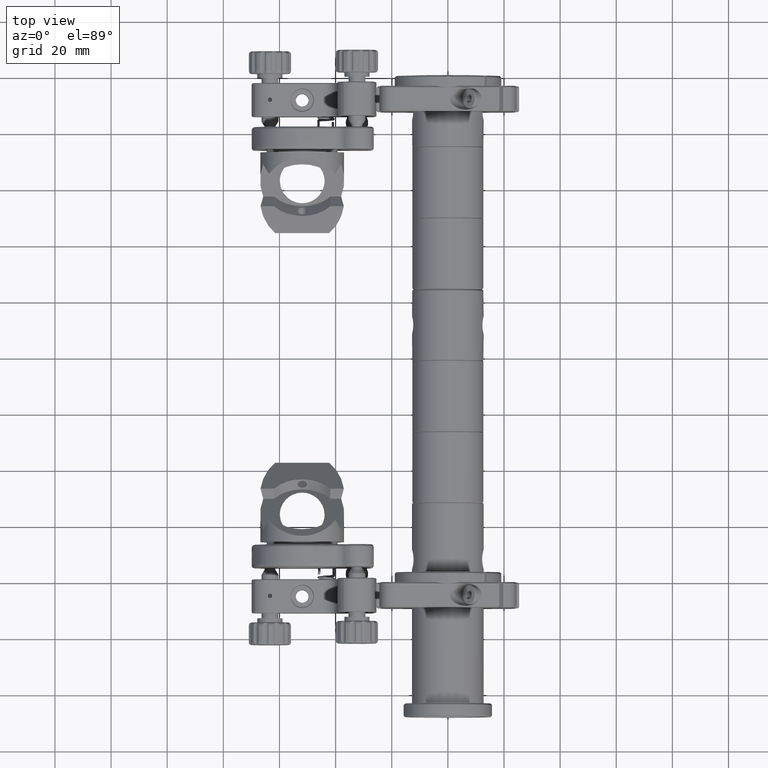
[diagram: clean part render]
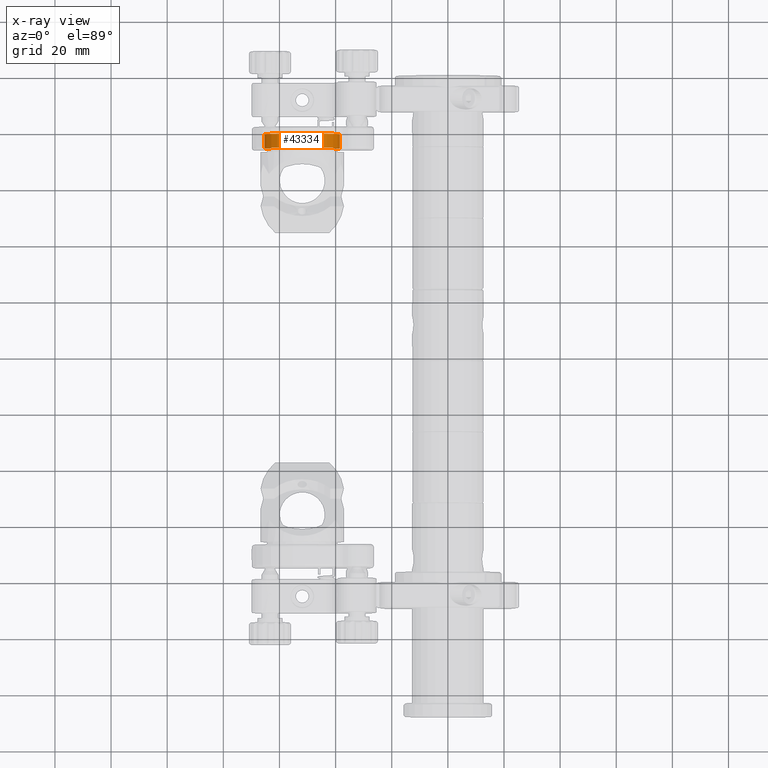
[diagram: x-ray — body ghosted, one internal face saturated and labeled with its STEP entity id]
A machine part, top view, then the same camera in x-ray: the body is ghosted and one INTERNAL B-rep face — a face not visible from any outside direction — is saturated and labeled: STEP entity #43334.
In plain terms, the highlighted cylindrical surface (partial cylindrical patch) has radius 13.5 mm, axis along (-0, -1, 0).
Its self-contained STEP definition (entity closure, byte-faithful):
#756 = DIRECTION ( 'NONE',  ( -1.001483571081362800E-032, -1.000000000000000000, 1.510687451236858300E-017 ) ) ;
#1805 = CARTESIAN_POINT ( 'NONE',  ( -40.64348731680862400, -0.4147025247540820900, -7.452578225899494600 ) ) ;
#1886 = CARTESIAN_POINT ( 'NONE',  ( -53.14203697783222000, -1.323185423163756100, 13.44296017083657100 ) ) ;
#2081 = CARTESIAN_POINT ( 'NONE',  ( -52.33499326868661700, -4.020768339289455500, 13.49445186381715400 ) ) ;
#2265 = CARTESIAN_POINT ( 'NONE',  ( -53.54992080364773000, -2.304412036103113500, 13.39879701122410100 ) ) ;
#2467 = CARTESIAN_POINT ( 'NONE',  ( -51.90000000000011900, -0.7647025247540874000, 13.49999999999996300 ) ) ;
#3519 = CARTESIAN_POINT ( 'NONE',  ( -51.16850972759171900, -0.9317615426184631100, 13.48053866437131800 ) ) ;
#3703 = CARTESIAN_POINT ( 'NONE',  ( -50.30289798555136800, -1.986433207663655900, 13.40521228662287500 ) ) ;
#3858 = CARTESIAN_POINT ( 'NONE',  ( -51.90000000000011900, -4.064702524754070000, 13.49999999999996600 ) ) ;
#3906 = CARTESIAN_POINT ( 'NONE',  ( -50.33409661521746900, -1.883526023011370200, 13.40894032977315200 ) ) ;
#6230 = VECTOR ( 'NONE', #9613, 1000.000000000000000 ) ;
#6426 = CARTESIAN_POINT ( 'NONE',  ( -52.73179753399251300, -3.855806062625634700, 13.47581400551094300 ) ) ;
#6493 = EDGE_CURVE ( 'NONE', #25069, #54581, #10334, .T. ) ;
#6502 = CIRCLE ( 'NONE', #27838, 13.49999999999999800 ) ;
#6611 = CARTESIAN_POINT ( 'NONE',  ( -51.90000000000011900, -4.064702524754070000, 13.49999999999996600 ) ) ;
#7191 = CARTESIAN_POINT ( 'NONE',  ( -53.46593205063718600, -2.945781966528314500, 13.40893687787420400 ) ) ;
#8051 = CARTESIAN_POINT ( 'NONE',  ( -51.68281908948704700, -0.7755020448223792800, 13.49866802050273600 ) ) ;
#8239 = CARTESIAN_POINT ( 'NONE',  ( -51.90000000000011900, -0.7647025247540874000, 13.49999999999996300 ) ) ;
#9528 = FACE_BOUND ( 'NONE', #36721, .T. ) ;
#9613 = DIRECTION ( 'NONE',  ( 1.001483571081362800E-032, 1.000000000000000000, -1.510687451236858300E-017 ) ) ;
#10334 = B_SPLINE_CURVE_WITH_KNOTS ( 'NONE', 3,
 ( #2467, #43398, #20434, #56222, #38462, #1886, #29356, #34113, #24606, #51676, #52283, #24793, #2265, #11756, #11558, #29153, #7191, #16276, #47141, #33924, #51874, #52078, #6426, #2081, #56816, #6611 ),
 .UNSPECIFIED., .F., .F.,
 ( 4, 2, 2, 2, 2, 2, 2, 2, 2, 2, 2, 2, 4 ),
 ( 0.005163477524172894000, 0.005808758060064351700, 0.006454038595955808600, 0.006776678863901530600, 0.007099319131847251600, 0.007421959399792973600, 0.007744599667738695500, 0.008067239935684417500, 0.008389880203630139400, 0.008712520471575861300, 0.009035160739521583300, 0.009680441275413027200, 0.01032572181130447100 ),
 .UNSPECIFIED. ) ;
#10668 = DIRECTION ( 'NONE',  ( -1.001483571081362800E-032, -1.000000000000000000, 1.510687451236858300E-017 ) ) ;
#11423 = EDGE_CURVE ( 'NONE', #54581, #25069, #54200, .T. ) ;
#11558 = CARTESIAN_POINT ( 'NONE',  ( -53.53944186464302400, -2.629880052053019700, 13.40009977025835900 ) ) ;
#11756 = CARTESIAN_POINT ( 'NONE',  ( -53.55007833630676100, -2.522610514484358000, 13.39877761179535700 ) ) ;
#12395 = CARTESIAN_POINT ( 'NONE',  ( -50.89387000252128200, -3.726885769342889600, 13.46275515442685500 ) ) ;
#12581 = CARTESIAN_POINT ( 'NONE',  ( -51.79226204289337700, -0.7647025247540867300, 13.49999999999995700 ) ) ;
#12773 = CARTESIAN_POINT ( 'NONE',  ( -50.81011394959333700, -1.171119110014527300, 13.45615536955070700 ) ) ;
#12965 = CARTESIAN_POINT ( 'NONE',  ( -50.65617448500515300, -1.325092777856558900, 13.44279982074445100 ) ) ;
#14777 = VERTEX_POINT ( 'NONE', #21993 ) ;
#16060 = LINE ( 'NONE', #1805, #22427 ) ;
#16276 = CARTESIAN_POINT ( 'NONE',  ( -53.38324467731341400, -3.145574461490828100, 13.41833509080947500 ) ) ;
#16365 = CARTESIAN_POINT ( 'NONE',  ( -63.15651268319141600, -0.4147025247540820900, -7.452578225899550500 ) ) ;
#16720 = CARTESIAN_POINT ( 'NONE',  ( -51.07316539467920800, -3.846647696417520900, 13.47495523017858900 ) ) ;
#17290 = CYLINDRICAL_SURFACE ( 'NONE', #42463, 13.49999999999999800 ) ;
#17298 = CARTESIAN_POINT ( 'NONE',  ( -50.45809772933848300, -3.245127229097593900, 13.42303167484915400 ) ) ;
#17455 = EDGE_CURVE ( 'NONE', #14777, #34288, #6502, .T. ) ;
#17489 = CARTESIAN_POINT ( 'NONE',  ( -50.58099125586966900, -3.429084449845563500, 13.43627582242298700 ) ) ;
#17642 = ORIENTED_EDGE ( 'NONE', *, *, #50761, .T. ) ;
#17827 = EDGE_LOOP ( 'NONE', ( #31862, #17642, #44327, #45841 ) ) ;
#19667 = CARTESIAN_POINT ( 'NONE',  ( -51.90000000000011900, -0.7647025247540874000, 13.49999999999996300 ) ) ;
#20434 = CARTESIAN_POINT ( 'NONE',  ( -52.33267429338034300, -0.8080016898628291600, 13.49452899094112200 ) ) ;
#21292 = CARTESIAN_POINT ( 'NONE',  ( -51.79087088004190100, -4.064702524754070000, 13.49999999999996800 ) ) ;
#21876 = CARTESIAN_POINT ( 'NONE',  ( -51.36829771951188000, -0.8489807550743381200, 13.48989597384507800 ) ) ;
#21993 = CARTESIAN_POINT ( 'NONE',  ( -40.64348731680862400, -0.4147025247540820900, -7.452578225899491000 ) ) ;
#22018 = VERTEX_POINT ( 'NONE', #49236 ) ;
#22427 = VECTOR ( 'NONE', #10668, 1000.000000000000000 ) ;
#23035 = CIRCLE ( 'NONE', #35977, 13.49999999999999800 ) ;
#24606 = CARTESIAN_POINT ( 'NONE',  ( -53.38221364422909000, -1.681738509126161000, 13.41844948242670400 ) ) ;
#24793 = CARTESIAN_POINT ( 'NONE',  ( -53.53912780388786500, -2.197158453093594600, 13.40013842150584700 ) ) ;
#25069 = VERTEX_POINT ( 'NONE', #19667 ) ;
#26056 = CARTESIAN_POINT ( 'NONE',  ( -51.47254701531494400, -4.011999909684727000, 13.49364386035144000 ) ) ;
#26631 = CARTESIAN_POINT ( 'NONE',  ( -51.90000000000011900, -4.064702524754070000, 13.49999999999996600 ) ) ;
#27838 = AXIS2_PLACEMENT_3D ( 'NONE', #45235, #756, #36544 ) ;
#29153 = CARTESIAN_POINT ( 'NONE',  ( -53.49762771145228200, -2.840914551095920600, 13.40514935299200900 ) ) ;
#29356 = CARTESIAN_POINT ( 'NONE',  ( -53.21171474734388300, -1.407970468592417900, 13.43625794800756900 ) ) ;
#29429 = DIRECTION ( 'NONE',  ( -1.001483571081362800E-032, -1.000000000000000000, 1.510687451236858300E-017 ) ) ;
#29456 = CARTESIAN_POINT ( 'NONE',  ( -51.90000000000004100, -5.414702524754079400, -3.469446951953614200E-014 ) ) ;
#29526 = VERTEX_POINT ( 'NONE', #41237 ) ;
#30590 = ORIENTED_EDGE ( 'NONE', *, *, #11423, .T. ) ;
#30599 = CARTESIAN_POINT ( 'NONE',  ( -50.41685076756295600, -1.683627808464083700, 13.41834574499449300 ) ) ;
#30799 = CARTESIAN_POINT ( 'NONE',  ( -50.26071695465957100, -2.198137177164832600, 13.40011949167768400 ) ) ;
#30991 = CARTESIAN_POINT ( 'NONE',  ( -50.80906033101024400, -3.657246016099747100, 13.45606456767557400 ) ) ;
#31340 = ORIENTED_EDGE ( 'NONE', *, *, #6493, .T. ) ;
#31862 = ORIENTED_EDGE ( 'NONE', *, *, #40183, .T. ) ;
#33924 = CARTESIAN_POINT ( 'NONE',  ( -53.21303781060168300, -3.419715861818357600, 13.43612834960916500 ) ) ;
#34113 = CARTESIAN_POINT ( 'NONE',  ( -53.33147823165007400, -1.587070309567361900, 13.42402671690234500 ) ) ;
#34288 = VERTEX_POINT ( 'NONE', #16365 ) ;
#34962 = CARTESIAN_POINT ( 'NONE',  ( -50.29348866391360000, -2.848071506972069700, 13.40432701888343400 ) ) ;
#35162 = CARTESIAN_POINT ( 'NONE',  ( -50.24996052615913600, -2.307577888834705600, 13.39878239752987800 ) ) ;
#35354 = CARTESIAN_POINT ( 'NONE',  ( -51.07199022769646000, -0.9834636769167853800, 13.47488082814567500 ) ) ;
#35529 = CARTESIAN_POINT ( 'NONE',  ( -50.89336754103671000, -1.102934284876985900, 13.46271535049001100 ) ) ;
#35977 = AXIS2_PLACEMENT_3D ( 'NONE', #29456, #57119, #38776 ) ;
#36544 = DIRECTION ( 'NONE',  ( 2.569960705150825800E-015, -9.637352644315596500E-017, -1.000000000000000000 ) ) ;
#36721 = EDGE_LOOP ( 'NONE', ( #30590, #31340 ) ) ;
#37126 = FACE_OUTER_BOUND ( 'NONE', #17827, .T. ) ;
#38462 = CARTESIAN_POINT ( 'NONE',  ( -52.91375111935386100, -1.095206250611909800, 13.46275026523242200 ) ) ;
#38776 = DIRECTION ( 'NONE',  ( 2.569960705150825800E-015, -1.284980352575412900E-016, -1.000000000000000000 ) ) ;
#38794 = EDGE_CURVE ( 'NONE', #29526, #34288, #42312, .T. ) ;
#39515 = CARTESIAN_POINT ( 'NONE',  ( -51.36769156081577800, -3.980219503144020600, 13.48987206557103000 ) ) ;
#39707 = CARTESIAN_POINT ( 'NONE',  ( -51.47116408247471500, -0.8177537099388505500, 13.49360239637564400 ) ) ;
#40094 = CARTESIAN_POINT ( 'NONE',  ( -50.25007928184696500, -2.630770651108527100, 13.39879702175428000 ) ) ;
#40183 = EDGE_CURVE ( 'NONE', #14777, #22018, #16060, .T. ) ;
#41237 = CARTESIAN_POINT ( 'NONE',  ( -63.15651268319141600, -5.414702524754080300, -7.452578225899550500 ) ) ;
#41285 = CARTESIAN_POINT ( 'NONE',  ( -63.15651268319141600, -0.4147025247540820900, -7.452578225899550500 ) ) ;
#42312 = LINE ( 'NONE', #41285, #6230 ) ;
#42463 = AXIS2_PLACEMENT_3D ( 'NONE', #42884, #29429, #47029 ) ;
#42884 = CARTESIAN_POINT ( 'NONE',  ( -51.90000000000004100, -0.4147025247540812000, -3.469446951953614200E-014 ) ) ;
#43334 = ADVANCED_FACE ( 'NONE', ( #9528, #37126 ), #17290, .F. ) ;
#43398 = CARTESIAN_POINT ( 'NONE',  ( -52.11542445027718900, -0.7647025247540879500, 13.49999999999996300 ) ) ;
#44038 = CARTESIAN_POINT ( 'NONE',  ( -50.58791916368247900, -1.408476793989987200, 13.43622143677619400 ) ) ;
#44327 = ORIENTED_EDGE ( 'NONE', *, *, #38794, .T. ) ;
#45235 = CARTESIAN_POINT ( 'NONE',  ( -51.90000000000004100, -0.4147025247540812000, -3.469446951953614200E-014 ) ) ;
#45841 = ORIENTED_EDGE ( 'NONE', *, *, #17455, .F. ) ;
#47029 = DIRECTION ( 'NONE',  ( 2.569960705150825800E-015, -9.637352644315596500E-017, -1.000000000000000000 ) ) ;
#47141 = CARTESIAN_POINT ( 'NONE',  ( -53.33263635951029600, -3.240337529556972700, 13.42390279988089000 ) ) ;
#48803 = CARTESIAN_POINT ( 'NONE',  ( -51.16790479175303100, -3.897346207543610100, 13.48050582233330800 ) ) ;
#48984 = CARTESIAN_POINT ( 'NONE',  ( -50.46849688010065200, -1.587148804442311400, 13.42402329545185900 ) ) ;
#49236 = CARTESIAN_POINT ( 'NONE',  ( -40.64348731680862400, -5.414702524754080300, -7.452578225899494600 ) ) ;
#50761 = EDGE_CURVE ( 'NONE', #22018, #29526, #23035, .T. ) ;
#51676 = CARTESIAN_POINT ( 'NONE',  ( -53.46519762705632700, -1.881457812073745100, 13.40902308849654800 ) ) ;
#51874 = CARTESIAN_POINT ( 'NONE',  ( -53.14349354139507400, -3.504555966340596300, 13.44282476577498100 ) ) ;
#52078 = CARTESIAN_POINT ( 'NONE',  ( -52.91560436417629600, -3.732759663872938100, 13.46260759506740200 ) ) ;
#52283 = CARTESIAN_POINT ( 'NONE',  ( -53.49702255084803700, -1.986235078294316100, 13.40522169324619200 ) ) ;
#54200 = B_SPLINE_CURVE_WITH_KNOTS ( 'NONE', 3,
 ( #26631, #21292, #57844, #26056, #39515, #48803, #16720, #12395, #30991, #17489, #17298, #34962, #40094, #35162, #30799, #3703, #3906, #30599, #48984, #44038, #12965, #12773, #35529, #35354, #3519, #21876, #39707, #8051, #12581, #8239 ),
 .UNSPECIFIED., .F., .F.,
 ( 4, 2, 2, 2, 2, 2, 2, 2, 2, 2, 2, 2, 2, 2, 4 ),
 ( 0.0000000000000000000, 0.0003227173452608065200, 0.0006454346905216130500, 0.0009681520357824196800, 0.001290869381043226100, 0.001936304071564838500, 0.002581738762086450900, 0.002904456107347256200, 0.003227173452608061600, 0.003549890797868866900, 0.003872608143129672200, 0.004195325488390478000, 0.004518042833651283300, 0.004840760178912088600, 0.005163477524172894000 ),
 .UNSPECIFIED. ) ;
#54581 = VERTEX_POINT ( 'NONE', #3858 ) ;
#56222 = CARTESIAN_POINT ( 'NONE',  ( -52.72983080532563300, -0.9724558566958355600, 13.47593783623370500 ) ) ;
#56816 = CARTESIAN_POINT ( 'NONE',  ( -52.11820611145374500, -4.064702524754068200, 13.49999999999996100 ) ) ;
#57119 = DIRECTION ( 'NONE',  ( -1.001483571081362800E-032, -1.000000000000000000, 1.510687451236858300E-017 ) ) ;
#57844 = CARTESIAN_POINT ( 'NONE',  ( -51.68358586175477900, -4.053982827444890800, 13.49867792062926200 ) ) ;